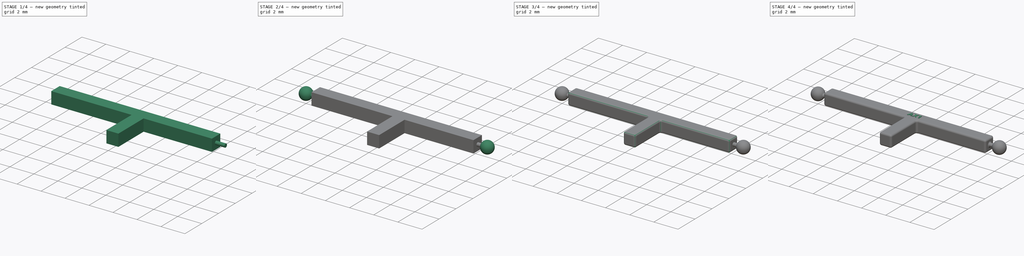
[diagram: build sequence overview — one tinted view per stage of 4, left to right]
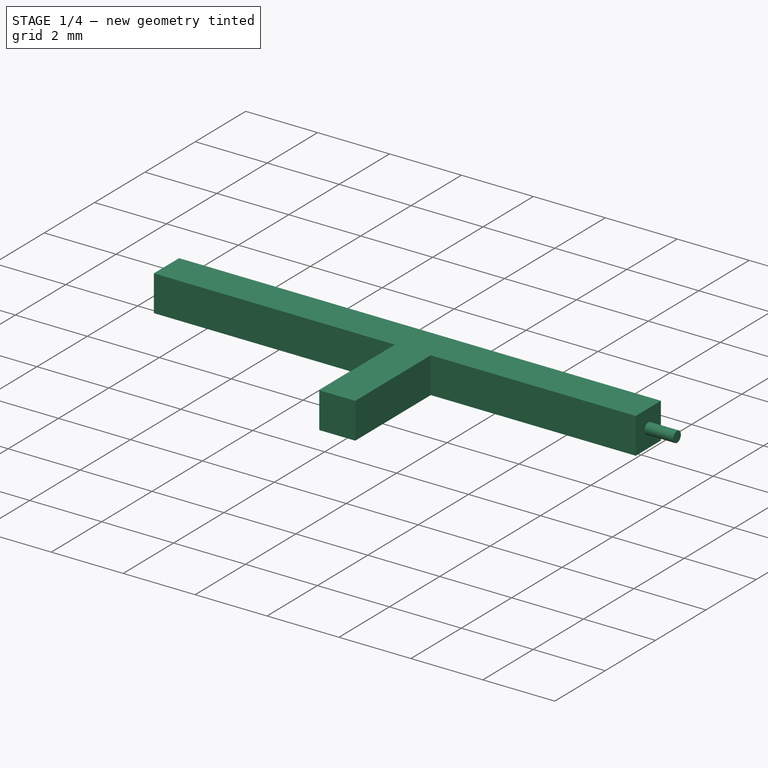
[diagram: stage 1 of 4 — iso view after this stage's code; geometry added in this stage tinted green]
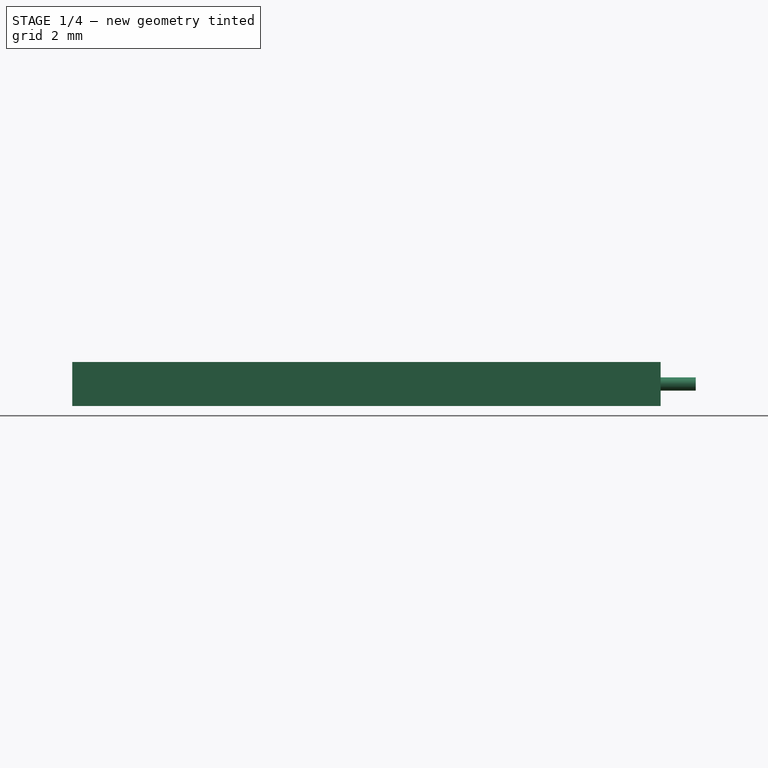
[diagram: stage 1 of 4 — front view after this stage's code; geometry added in this stage tinted green]
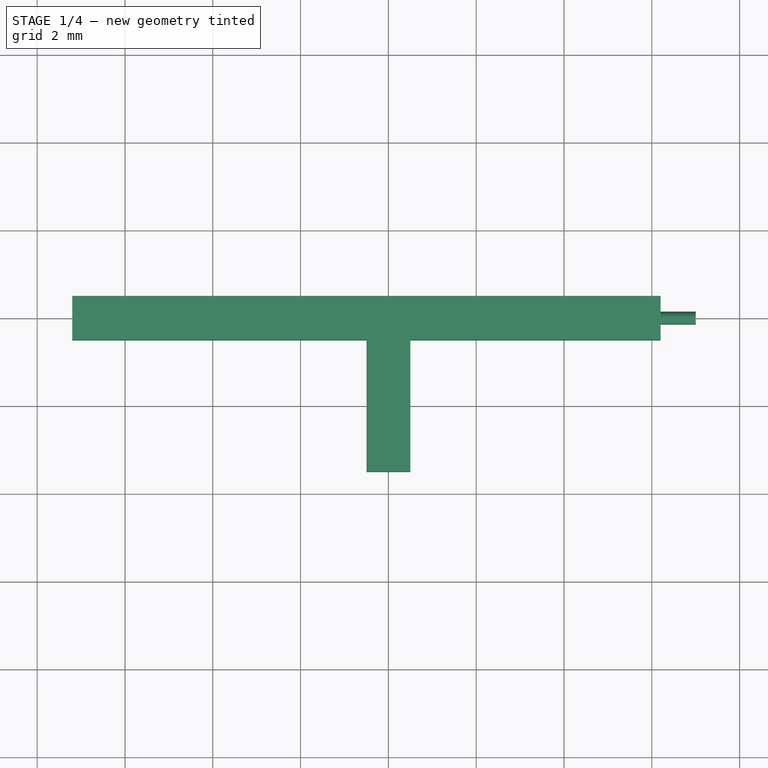
[diagram: stage 1 of 4 — top view after this stage's code; geometry added in this stage tinted green]
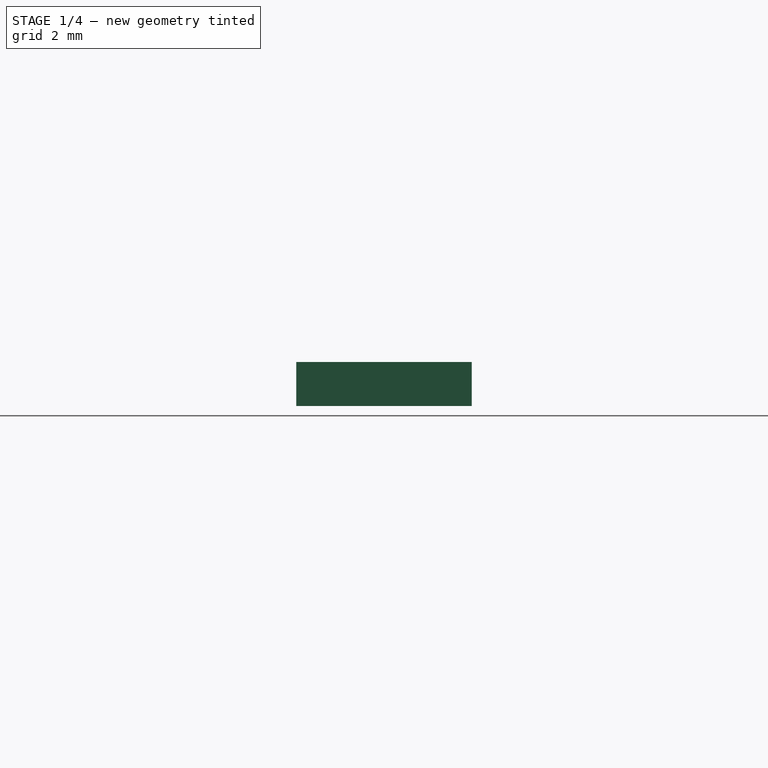
[diagram: stage 1 of 4 — right view after this stage's code; geometry added in this stage tinted green]
FCSTD DOCUMENT  (FreeCAD 0.20R29177 (Git))
Label: ax1
License: All rights reserved
LicenseURL: http://en.wikipedia.org/wiki/All_rights_reserved
objects: Sketcher::SketchObject×6, PartDesign::Pad×5, PartDesign::Plane×5, PartDesign::Fillet×5, PartDesign::Revolution×2, Spreadsheet::Sheet×1, Part::Part2DObjectPython×1, PartDesign::Body×1
note: 37 computed .brp shape members not serialized (recipe doc carries the construction recipe); baked Part::Feature solids carry a one-line shape summary decoded from their .brp

FEATURE [Spreadsheet::Sheet] Spreadsheet
  cells = A2=Design Parameters; A3=RefLength; B3(RefLength)==1mm; A4=DistToPNWPJoint; B4(DistToPNWPJoint)==8 * RefLength; A5=DistToANWPJoint; B5(DistToANWPJoint)==7 * RefLength; A6=BallJointDiam; B6(BallJointDiam)==1 * RefLength; A7=BallJointConnDiam; B7(BallJointConnDiam)==0.3 * BallJointDiam; A8=BallJointConnToMainBeam; B8(BallJointConnToMainBeam)==0.3 * BallJointDiam; A9=DistToPNWPConnPlane; B9(DistToPNWPConnPlane)==DistToPNWPJoint - 0.5 * BallJointDiam; A10=DistToANWPConnPlane; B10(DistToANWPConnPlane)==DistToANWPJoint - 0.5 * BallJointDiam; A11=MainBeamWidth; B11(MainBeamWidth)==1 * RefLength; A12=MainBeamHeight; B12(MainBeamHeight)==1 * RefLength; A13=MainBeamLength; B13(MainBeamLength)==DistToANWPJoint + DistToPNWPJoint - BallJointDiam; A14=Ax2StubWidth; B14(Ax2StubWidth)==1 * RefLength; A15=Ax2StubLength; B15(Ax2StubLength)==3 * RefLength; A16=EdgeFilletRadius; B16(EdgeFilletRadius)==0.15 * RefLength; A17=BallJointConnFilletRadius; B17(BallJointConnFilletRadius)==0.1 * RefLength; A18=LabelPadHeight; B18(LabelPadHeight)==0.05 * RefLength; A19=LabelString; B19(LabelString)=AX1
FEATURE [Sketcher::SketchObject] Sketch  label="MainBeamSketchSketch"
  FullyConstrained = true
  MapMode = 5
  Support = -> [XY_Plane]
  expr: Constraints[12] = Spreadsheet.MainBeamWidth
  expr: Constraints[24] = Spreadsheet.DistToPNWPJoint
  expr: Constraints[25] = Spreadsheet.BallJointDiam * 0.5 + Spreadsheet.BallJointConnToMainBeam
  expr: Constraints[26] = Spreadsheet.DistToANWPJoint
  expr: Constraints[27] = Spreadsheet.BallJointDiam * 0.5 + Spreadsheet.BallJointConnToMainBeam
  sketch-geometry (10):
    g0: LineSegment StartX=-7.2 StartY=0.5 StartZ=0 EndX=6.2 EndY=0.5 EndZ=0
    g1: LineSegment StartX=6.2 StartY=0.5 StartZ=0 EndX=6.2 EndY=-0.5 EndZ=0
    g2: LineSegment StartX=6.2 StartY=-0.5 StartZ=0 EndX=-7.2 EndY=-0.5 EndZ=0
    g3: LineSegment StartX=-7.2 StartY=-0.5 StartZ=0 EndX=-7.2 EndY=0.5 EndZ=0
    g4: GeomPoint X=0 Y=0.5 Z=0
    g5: GeomPoint X=0 Y=-0.5 Z=0
    g6: LineSegment StartX=0 StartY=0.5 StartZ=0 EndX=0 EndY=0 EndZ=0
    g7: LineSegment StartX=0 StartY=0 StartZ=0 EndX=0 EndY=-0.5 EndZ=0
    g8: LineSegment StartX=-8 StartY=0 StartZ=0 EndX=-7.2 EndY=0 EndZ=0
    g9: LineSegment StartX=6.2 StartY=0 StartZ=0 EndX=7 EndY=0 EndZ=0
  constraints (28):
    c: Coincident(g0,g1)
    c: Coincident(g1,g2)
    c: Coincident(g2,g3)
    c: Coincident(g3,g0)
    c: Horizontal(g0)
    c: Horizontal(g2)
    c: Vertical(g1)
    c: Vertical(g3)
    c: PointOnObject(g4,g0)
    c: PointOnObject(g5,g2)
    c: PointOnObject(g4,g-2)
    c: PointOnObject(g5,g-2)
    c: Distance(g1) = 1
    c: Coincident(g6,g4)
    c: Coincident(g6,g-1)
    c: Coincident(g7,g6)
    c: Coincident(g7,g5)
    c: Equal(g6,g7)
    c: Horizontal(g8)
    c: PointOnObject(g8,g3)
    c: PointOnObject(g8,g-1)
    c: Horizontal(g9)
    c: PointOnObject(g9,g1)
    c: PointOnObject(g9,g-1)
    c: DistanceX(g8,g6) = 8
    c: DistanceX(g8,g8) = 0.8
    c: DistanceX(g6,g9) = 7
    c: DistanceX(g9,g9) = 0.8
FEATURE [PartDesign::Pad] Pad  label="MainBeamPad"
  Direction = (0,0,1)
  Length = 1
  Length2 = 10
  Midplane = true
  Profile = -> Sketch
  ReferenceAxis = -> Sketch [N_Axis]
  Type = 0
  expr: Length = Spreadsheet.MainBeamHeight
FEATURE [PartDesign::Plane] DatumPlane  label="Ax2StubFaceDatumPlane"
  AttachmentOffset = pos=(0,0,0.5) rot=(0,0,1;0rad)
  Length = 60
  MapMode = 5
  Placement = pos=(0,-0.5,-1e-16) rot=(1,0,0;1.5708rad)
  ResizeMode = 0
  Support = -> [XZ_Plane]
  Width = 60
  expr: .AttachmentOffset.Base.z = Spreadsheet.MainBeamWidth * 0.5
FEATURE [Sketcher::SketchObject] Sketch001  label="Ax2StubSketch"
  FullyConstrained = true
  MapMode = 5
  Placement = pos=(0,-0.5,-1e-16) rot=(1,0,0;1.5708rad)
  Support = -> [DatumPlane]
  expr: Constraints[10] = Spreadsheet.Ax2StubWidth
  expr: Constraints[9] = Spreadsheet.MainBeamHeight
  sketch-geometry (4):
    g0: LineSegment StartX=-0.5 StartY=0.5 StartZ=0 EndX=0.5 EndY=0.5 EndZ=0
    g1: LineSegment StartX=0.5 StartY=0.5 StartZ=0 EndX=0.5 EndY=-0.5 EndZ=0
    g2: LineSegment StartX=0.5 StartY=-0.5 StartZ=0 EndX=-0.5 EndY=-0.5 EndZ=0
    g3: LineSegment StartX=-0.5 StartY=-0.5 StartZ=0 EndX=-0.5 EndY=0.5 EndZ=0
  constraints (11):
    c: Coincident(g0,g1)
    c: Coincident(g1,g2)
    c: Coincident(g2,g3)
    c: Coincident(g3,g0)
    c: Horizontal(g0)
    c: Horizontal(g2)
    c: Vertical(g1)
    c: Vertical(g3)
    c: Symmetric(g0,g1,g-1)
    c: DistanceY(g1,g1) = 1
    c: DistanceX(g2,g2) = 1
FEATURE [PartDesign::Pad] Pad001  label="Ax2StubPad"
  BaseFeature = -> Pad
  Direction = (0,-1,-2e-16)
  Length = 3
  Length2 = 10
  Profile = -> Sketch001
  ReferenceAxis = -> Sketch001 [N_Axis]
  Type = 0
  expr: Length = Spreadsheet.Ax2StubLength
FEATURE [PartDesign::Plane] DatumPlane001  label="ANWPConnFaceDatumPlane"
  AttachmentOffset = pos=(0,0,6.5) rot=(0,0,1;0rad)
  Length = 60
  MapMode = 5
  Placement = pos=(6.5,-1.4e-15,1.4e-15) rot=(0.57735,0.57735,0.57735;2.0944rad)
  ResizeMode = 0
  Support = -> [YZ_Plane]
  Width = 60
  expr: .AttachmentOffset.Base.z = Spreadsheet.DistToANWPConnPlane
FEATURE [PartDesign::Plane] DatumPlane002  label="PNWPConnFaceDatumPlane"
  AttachmentOffset = pos=(0,0,-7.5) rot=(0,0,1;0rad)
  Length = 60
  MapMode = 5
  Placement = pos=(-7.5,1.7e-15,-1.7e-15) rot=(0.57735,0.57735,0.57735;2.0944rad)
  ResizeMode = 0
  Support = -> [YZ_Plane]
  Width = 60
  expr: .AttachmentOffset.Base.z = -Spreadsheet.DistToPNWPConnPlane
FEATURE [Sketcher::SketchObject] Sketch002  label="ANWPBallJointConnSketch"
  FullyConstrained = true
  MapMode = 5
  Placement = pos=(6.5,-1.4e-15,1.4e-15) rot=(0.57735,0.57735,0.57735;2.0944rad)
  Support = -> [DatumPlane001]
  expr: Constraints[1] = Spreadsheet.BallJointConnDiam
  sketch-geometry (1):
    g0: Circle CenterX=0 CenterY=0 CenterZ=0 NormalX=0 NormalY=0 NormalZ=1 AngleXU=0 Radius=0.15
  constraints (2):
    c: Coincident(g0,g-1)
    c: Diameter(g0) = 0.3
FEATURE [PartDesign::Pad] Pad002  label="ANWPBallJointConnPad"
  BaseFeature = -> Pad001
  Direction = (1,-1e-16,1e-16)
  Length = 1
  Length2 = 10
  Midplane = true
  Profile = -> Sketch002
  ReferenceAxis = -> Sketch002 [N_Axis]
  Type = 0
  expr: Length = Spreadsheet.BallJointDiam
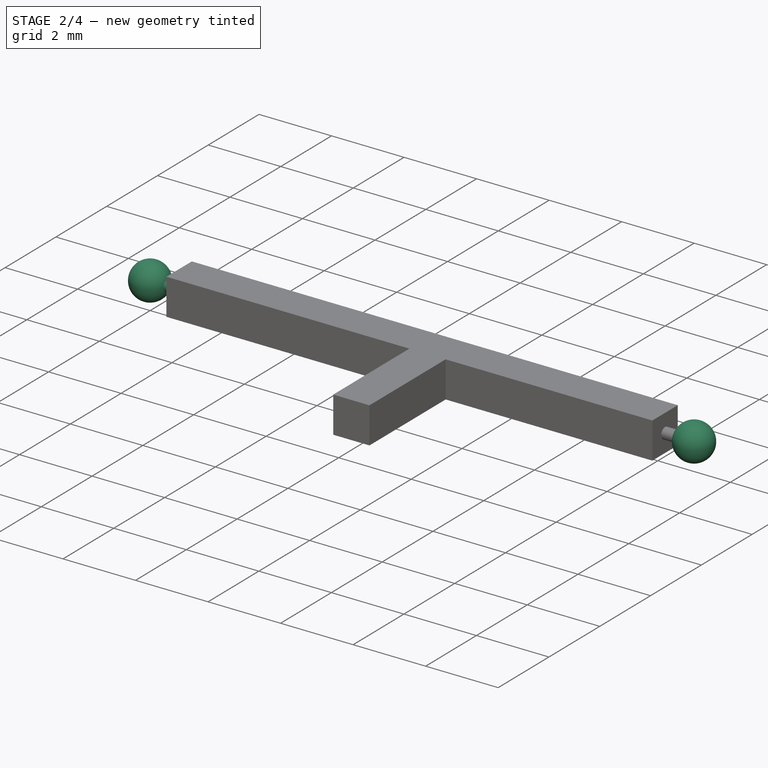
[diagram: stage 2 of 4 — iso view after this stage's code; geometry added in this stage tinted green]
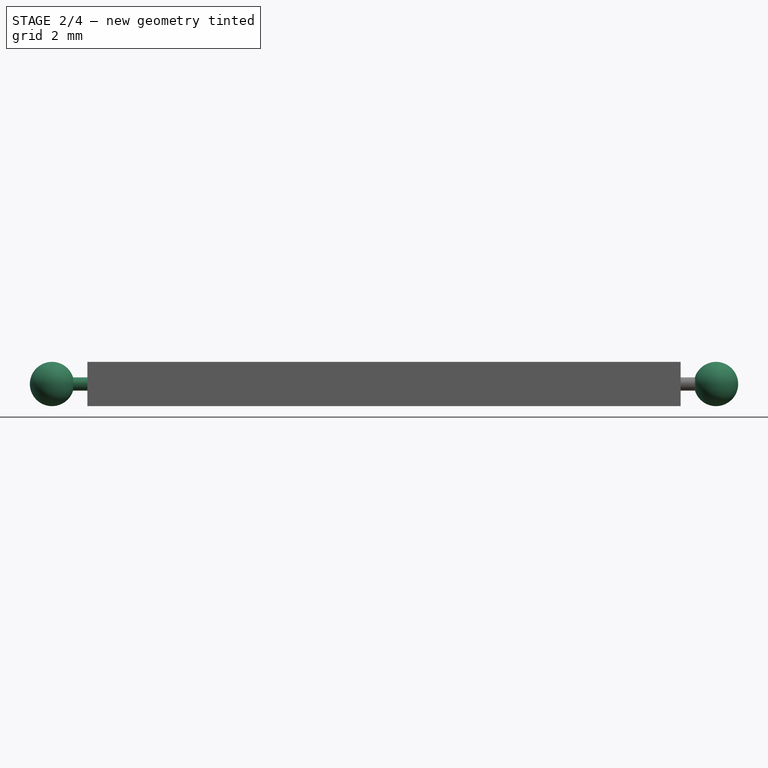
[diagram: stage 2 of 4 — front view after this stage's code; geometry added in this stage tinted green]
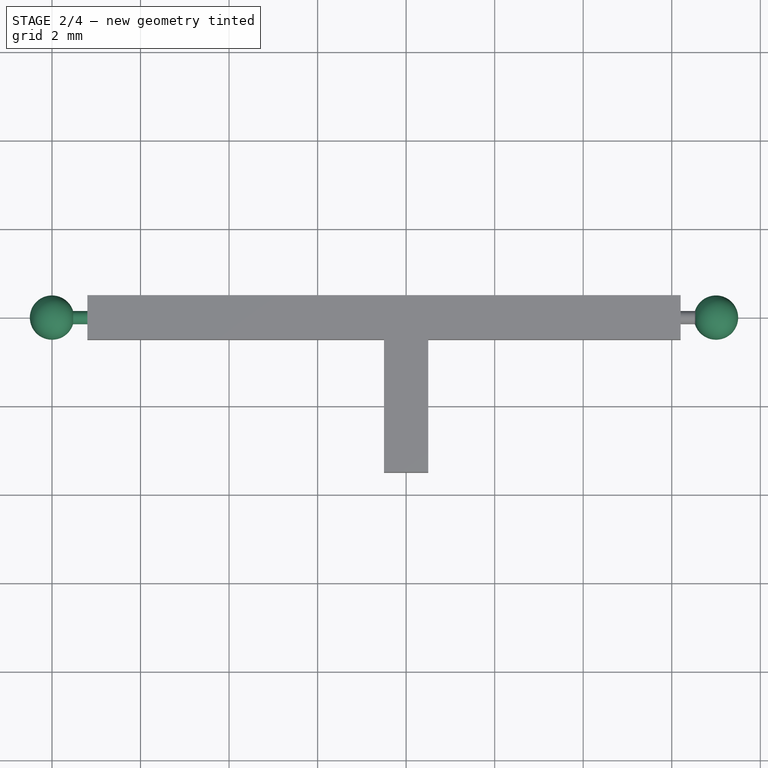
[diagram: stage 2 of 4 — top view after this stage's code; geometry added in this stage tinted green]
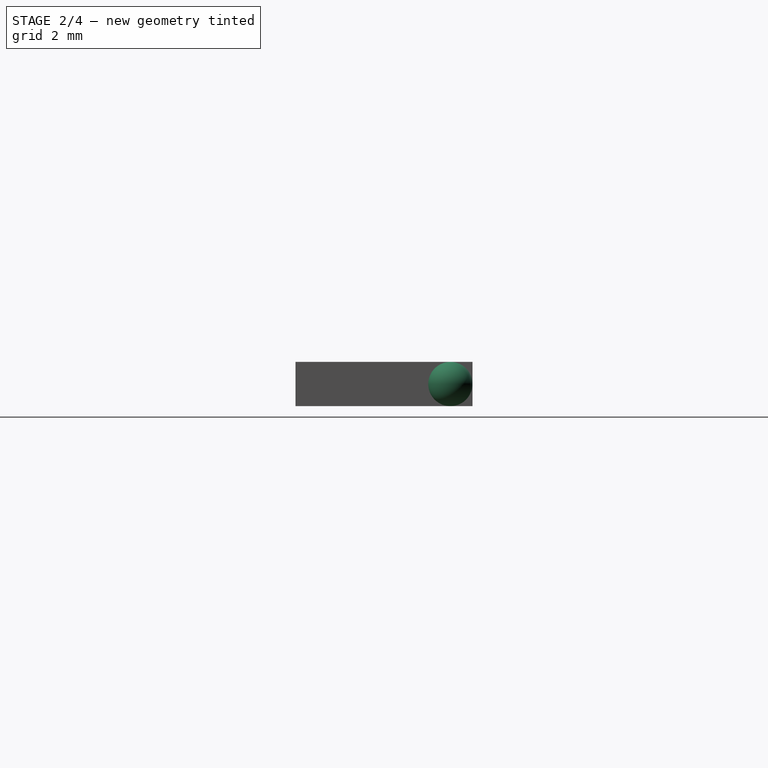
[diagram: stage 2 of 4 — right view after this stage's code; geometry added in this stage tinted green]
FEATURE [Sketcher::SketchObject] Sketch003  label="PNWPBallJointConnSketch"
  FullyConstrained = true
  MapMode = 5
  Placement = pos=(-7.5,1.7e-15,-1.7e-15) rot=(0.57735,0.57735,0.57735;2.0944rad)
  Support = -> [DatumPlane002]
  expr: Constraints[1] = Spreadsheet.BallJointConnDiam
  sketch-geometry (1):
    g0: Circle CenterX=0 CenterY=0 CenterZ=0 NormalX=0 NormalY=0 NormalZ=1 AngleXU=0 Radius=0.15
  constraints (2):
    c: Coincident(g0,g-1)
    c: Diameter(g0) = 0.3
FEATURE [PartDesign::Pad] Pad003  label="PNWPBallJointConnPad"
  BaseFeature = -> Pad002
  Direction = (1,-1e-16,1e-16)
  Length = 1
  Length2 = 10
  Midplane = true
  Profile = -> Sketch003
  ReferenceAxis = -> Sketch003 [N_Axis]
  Type = 0
  expr: Length = Spreadsheet.BallJointDiam
FEATURE [PartDesign::Plane] DatumPlane003  label="ANWPBallJointDatumPlane"
  AttachmentOffset = pos=(0,0,7) rot=(0,0,1;0rad)
  Length = 60
  MapMode = 5
  Placement = pos=(7,-1.6e-15,1.6e-15) rot=(0.57735,0.57735,0.57735;2.0944rad)
  ResizeMode = 0
  Support = -> [YZ_Plane]
  Width = 60
  expr: .AttachmentOffset.Base.z = Spreadsheet.DistToANWPJoint
FEATURE [PartDesign::Plane] DatumPlane004  label="PNWPBallJointDatumPlane"
  AttachmentOffset = pos=(0,0,-8) rot=(0,0,1;0rad)
  Length = 60
  MapMode = 5
  Placement = pos=(-8,1.8e-15,-1.8e-15) rot=(0.57735,0.57735,0.57735;2.0944rad)
  ResizeMode = 0
  Support = -> [YZ_Plane]
  Width = 60
  expr: .AttachmentOffset.Base.z = -Spreadsheet.DistToPNWPJoint
FEATURE [Sketcher::SketchObject] Sketch004  label="ANWPBallJointSketch"
  FullyConstrained = true
  MapMode = 5
  Placement = pos=(7,-1.6e-15,1.6e-15) rot=(0.57735,0.57735,0.57735;2.0944rad)
  Support = -> [DatumPlane003]
  expr: Constraints[3] = Spreadsheet.BallJointDiam
  sketch-geometry (3):
    g0: ArcOfCircle CenterX=0 CenterY=0 CenterZ=0 NormalX=0 NormalY=0 NormalZ=1 AngleXU=0 Radius=0.5 StartAngle=1.5708 EndAngle=4.71239
    g1: LineSegment StartX=0 StartY=0.5 StartZ=0 EndX=0 EndY=0 EndZ=0
    g2: LineSegment StartX=0 StartY=0 StartZ=0 EndX=-1e-16 EndY=-0.5 EndZ=0
  constraints (8):
    c: Coincident(g0,g-1)
    c: PointOnObject(g0,g-2)
    c: PointOnObject(g0,g-2)
    c: DistanceY(g0,g0) = 1
    c: Coincident(g0,g1)
    c: Coincident(g1,g0)
    c: Coincident(g0,g2)
    c: Coincident(g2,g0)
FEATURE [PartDesign::Revolution] Revolution  label="ANWPBallJointRevolution"
  Angle = 360
  Axis = (-1e-16,1e-16,1)
  Base = (7,-1.6e-15,1.6e-15)
  BaseFeature = -> Pad003
  Profile = -> Sketch004
  ReferenceAxis = -> Sketch004 [V_Axis]
FEATURE [Sketcher::SketchObject] Sketch005  label="PNWPBallJointSketch"
  FullyConstrained = true
  MapMode = 5
  Placement = pos=(-8,1.8e-15,-1.8e-15) rot=(0.57735,0.57735,0.57735;2.0944rad)
  Support = -> [DatumPlane004]
  expr: Constraints[7] = Spreadsheet.BallJointDiam
  sketch-geometry (3):
    g0: ArcOfCircle CenterX=0 CenterY=0 CenterZ=0 NormalX=0 NormalY=0 NormalZ=1 AngleXU=0 Radius=0.5 StartAngle=1.5708 EndAngle=4.71239
    g1: LineSegment StartX=0 StartY=0 StartZ=0 EndX=0 EndY=0.5 EndZ=0
    g2: LineSegment StartX=-1e-16 StartY=-0.5 StartZ=0 EndX=0 EndY=0 EndZ=0
  constraints (8):
    c: Coincident(g-1,g0)
    c: PointOnObject(g0,g-2)
    c: PointOnObject(g0,g-2)
    c: Coincident(g0,g1)
    c: Coincident(g2,g0)
    c: Coincident(g2,g0)
    c: Coincident(g1,g0)
    c: DistanceY(g0,g0) = 1
FEATURE [PartDesign::Revolution] Revolution001  label="PNWPBallJointRevolution"
  Angle = 360
  Axis = (-1e-16,1e-16,1)
  Base = (-8,1.8e-15,-1.8e-15)
  BaseFeature = -> Revolution
  Profile = -> Sketch005
  ReferenceAxis = -> Sketch005 [V_Axis]
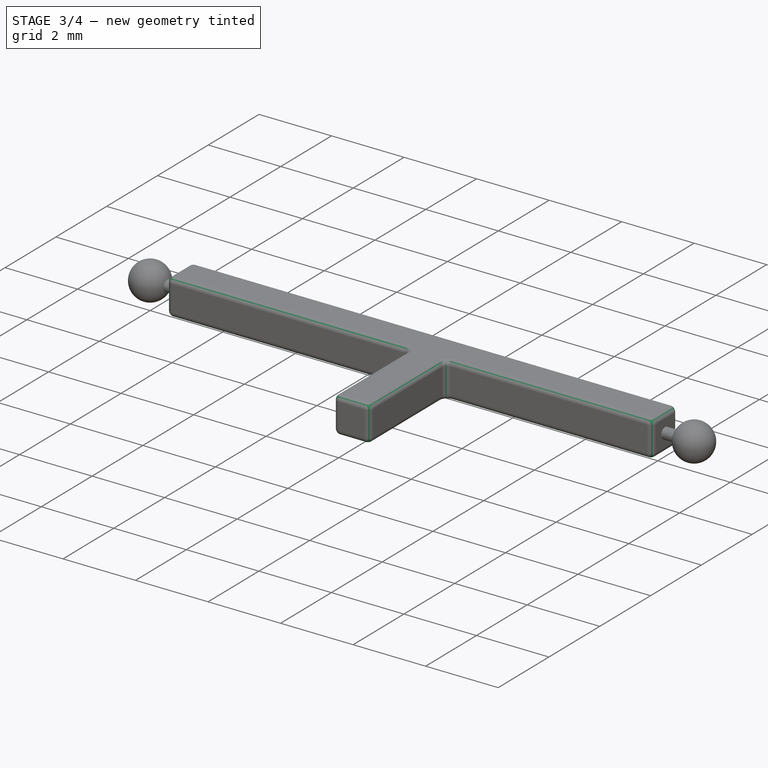
[diagram: stage 3 of 4 — iso view after this stage's code; geometry added in this stage tinted green]
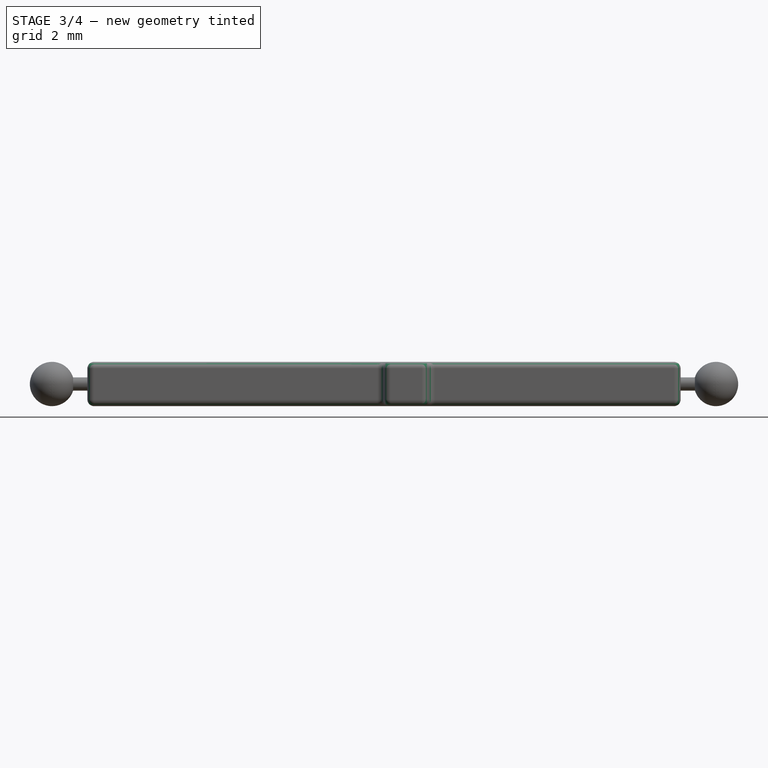
[diagram: stage 3 of 4 — front view after this stage's code; geometry added in this stage tinted green]
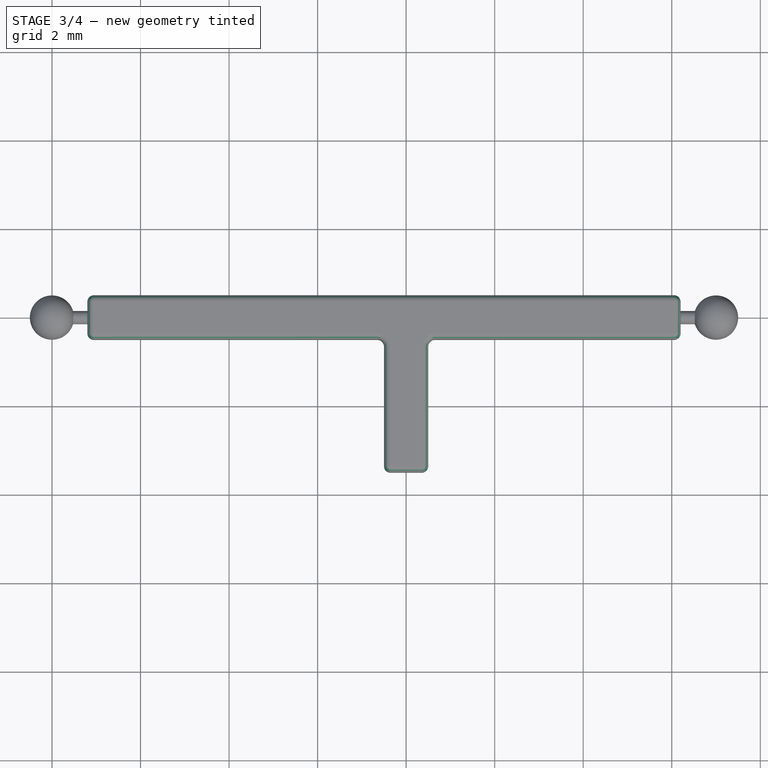
[diagram: stage 3 of 4 — top view after this stage's code; geometry added in this stage tinted green]
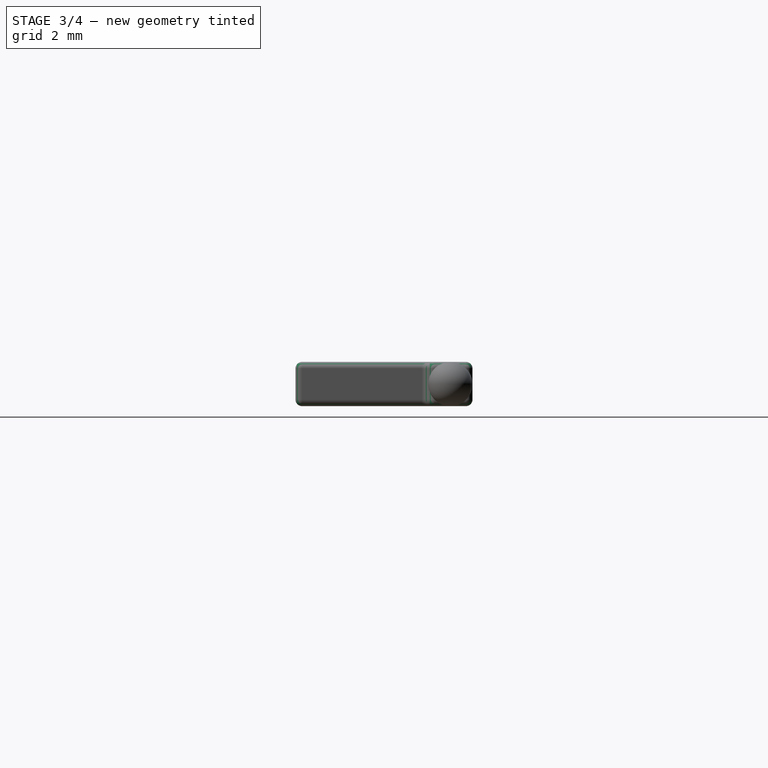
[diagram: stage 3 of 4 — right view after this stage's code; geometry added in this stage tinted green]
FEATURE [Part::Part2DObjectPython] ShapeString  label="LabelShapeString"  # Draft 2D object (typed FeaturePython)
  FontFile = ./font/Ubuntu-B.ttf
  MakeFace = true
  Placement = pos=(-0.5,-0.2,0.5) rot=(0,0,1;0rad)
  Size = 0.2
  String = AX1
  Tracking = 0
  expr: .Placement.Base.x = -Spreadsheet.RefLength * 0.5
  expr: .Placement.Base.y = -Spreadsheet.RefLength * 0.2
  expr: .Placement.Base.z = Spreadsheet.RefLength * 0.5
  expr: Size = Spreadsheet.RefLength * 0.2
  expr: String = Spreadsheet.LabelString
FEATURE [PartDesign::Fillet] Fillet  label="EdgeFillet1"
  Base = -> Revolution001 [Edge19,Edge31,Edge35,Edge22,Edge5,Edge1,Edge2,Edge11]
  BaseFeature = -> Revolution001
  Radius = 0.15
  SupportTransform = false
  UseAllEdges = false
  expr: Radius = Spreadsheet.EdgeFilletRadius
FEATURE [PartDesign::Fillet] Fillet001  label="EdgeFillet2"
  Base = -> Fillet [Edge4]
  BaseFeature = -> Fillet
  Radius = 0.15
  SupportTransform = false
  UseAllEdges = false
  expr: Radius = Spreadsheet.EdgeFilletRadius
FEATURE [PartDesign::Fillet] Fillet002  label="EdgeFillet3"
  Base = -> Fillet001 [Edge3]
  BaseFeature = -> Fillet001
  Radius = 0.15
  SupportTransform = false
  UseAllEdges = false
  expr: Radius = Spreadsheet.EdgeFilletRadius
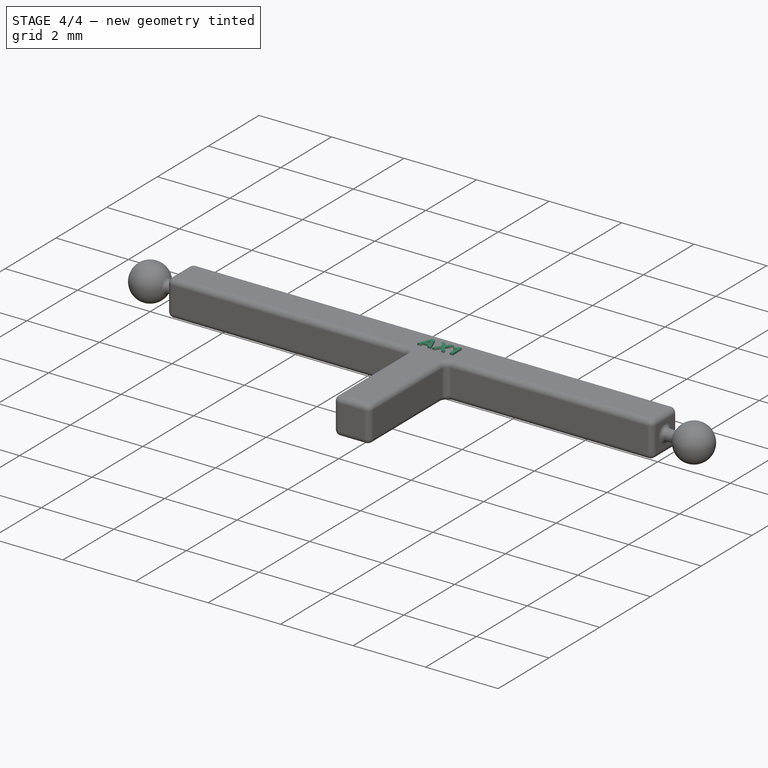
[diagram: stage 4 of 4 — iso view after this stage's code; geometry added in this stage tinted green]
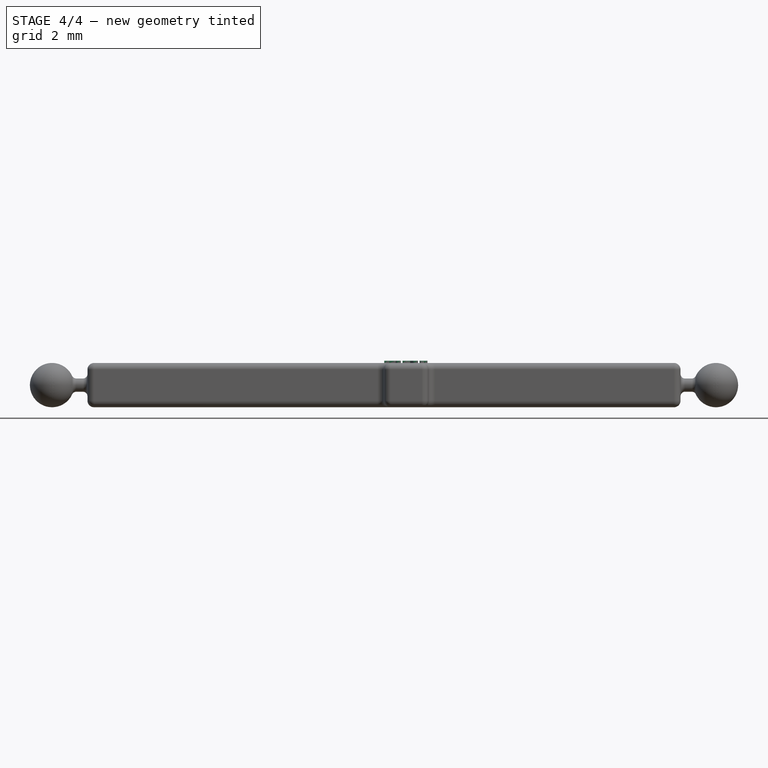
[diagram: stage 4 of 4 — front view after this stage's code; geometry added in this stage tinted green]
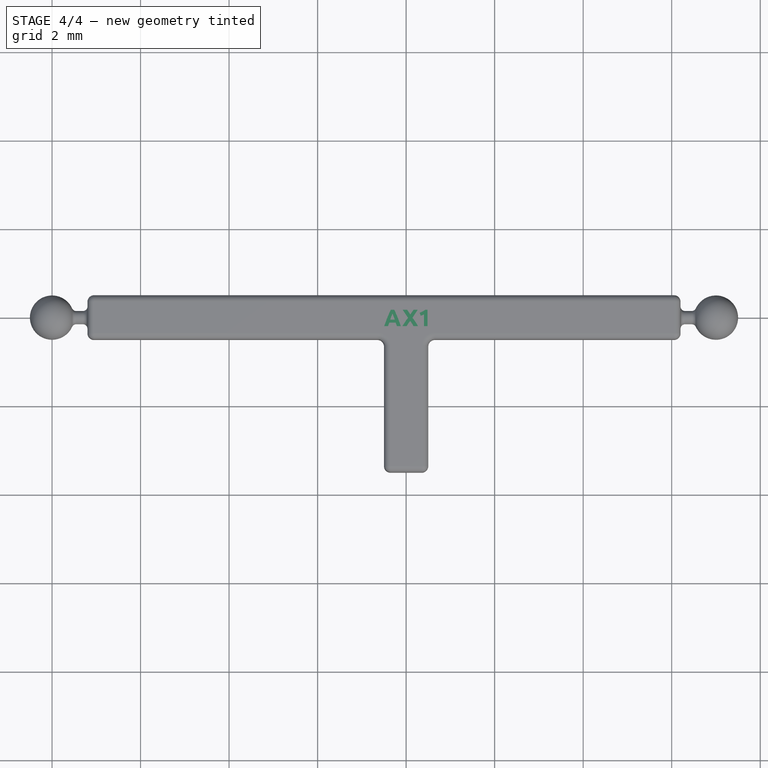
[diagram: stage 4 of 4 — top view after this stage's code; geometry added in this stage tinted green]
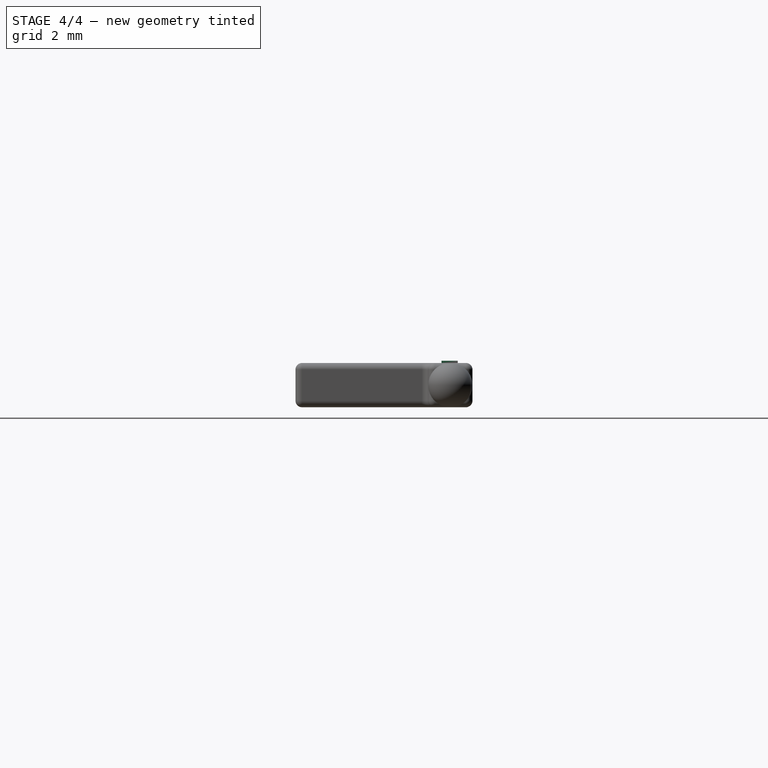
[diagram: stage 4 of 4 — right view after this stage's code; geometry added in this stage tinted green]
FEATURE [PartDesign::Fillet] Fillet003  label="BallConnFillet1"
  Base = -> Fillet002 [Edge24,Edge52]
  BaseFeature = -> Fillet002
  Radius = 0.1
  SupportTransform = false
  UseAllEdges = false
  expr: Radius = Spreadsheet.BallJointConnFilletRadius
FEATURE [PartDesign::Fillet] Fillet004  label="BallConnFillet2"
  Base = -> Fillet003 [Edge116,Edge136]
  BaseFeature = -> Fillet003
  Radius = 0.1
  SupportTransform = false
  UseAllEdges = false
  expr: Radius = Spreadsheet.BallJointConnFilletRadius
FEATURE [PartDesign::Pad] Pad004  label="LabelPad"
  BaseFeature = -> Fillet004
  Direction = (0,0,1)
  Length = 0.05
  Length2 = 10
  Profile = -> ShapeString
  ReferenceAxis = -> ShapeString [N_Axis]
  Type = 0
  expr: Length = Spreadsheet.LabelPadHeight
FEATURE [PartDesign::Body] Body
  Group = -> [Sketch,Pad,DatumPlane,Sketch001,Pad001,DatumPlane001,DatumPlane002,Sketch002,Pad002,Sketch003,Pad003,DatumPlane003,DatumPlane004,Sketch004,Revolution,Sketch005,Revolution001,Fillet,Fillet001,Fillet002,Fillet003,Fillet004,ShapeString,Pad004]
  Origin = -> Origin
  Tip = -> Pad004
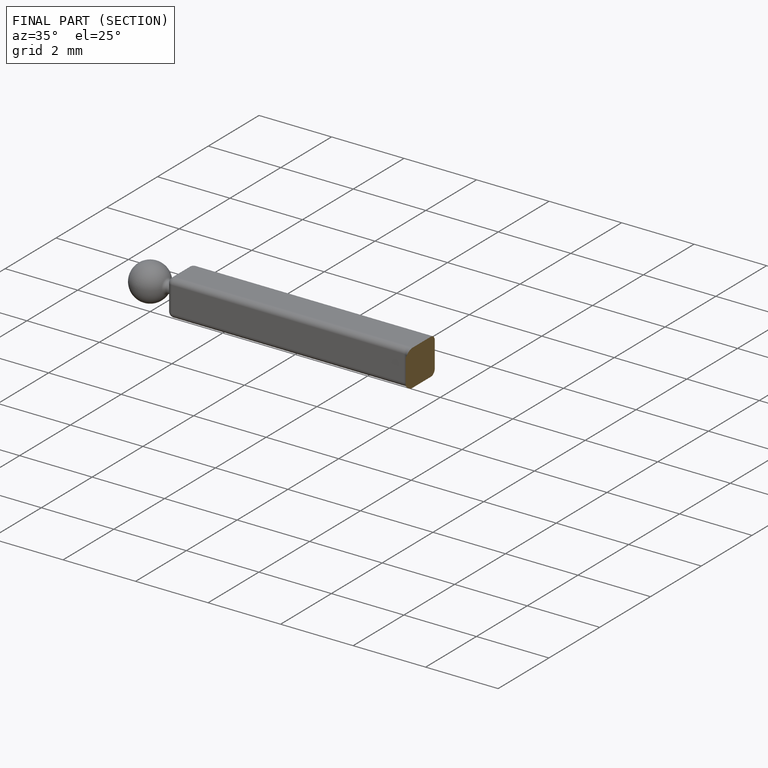
[diagram: finished part — half-section view (interior)]
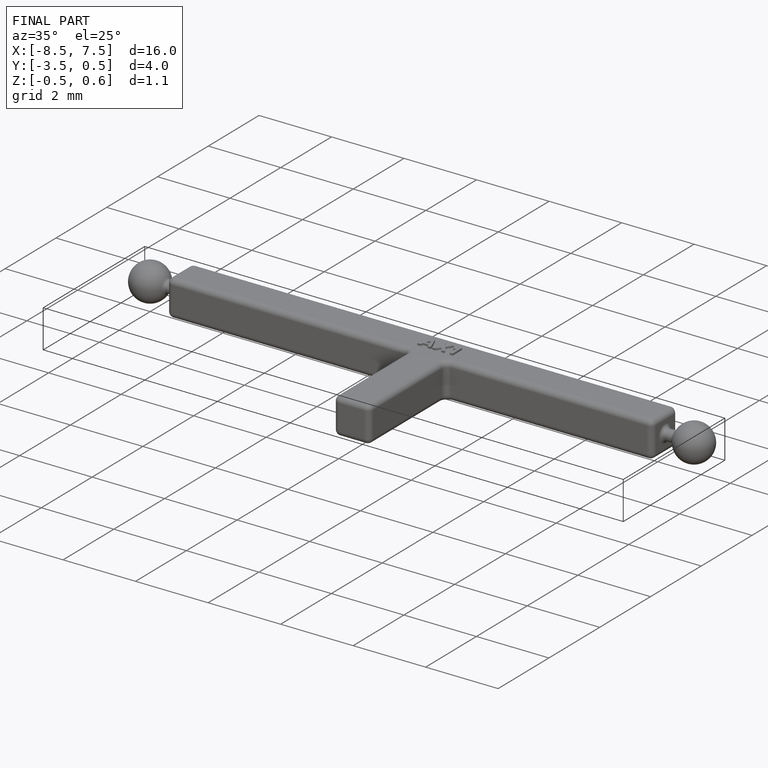
[diagram: finished part — iso view with bounding-box wireframe]
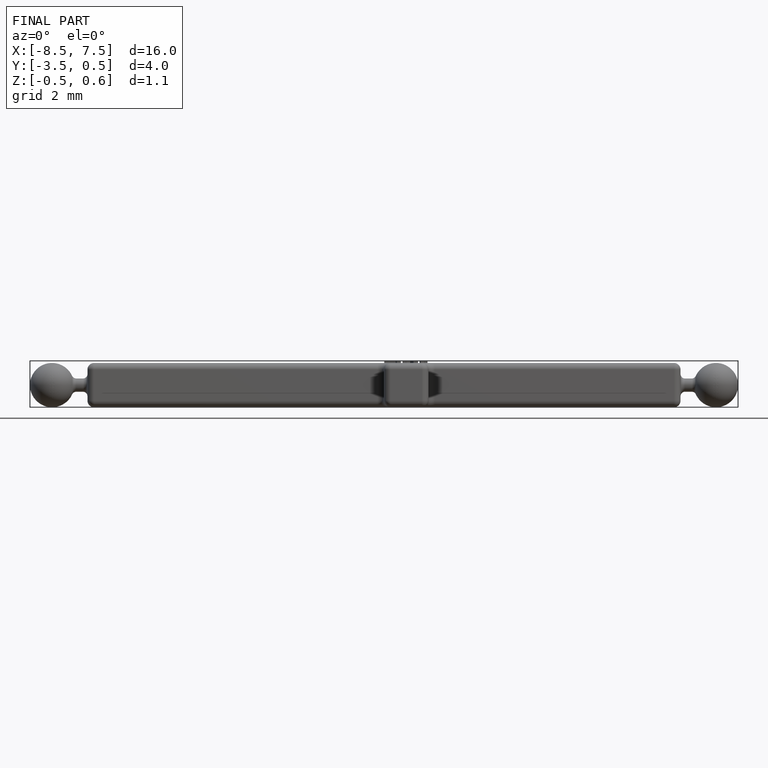
[diagram: finished part — front view with bounding-box wireframe]
